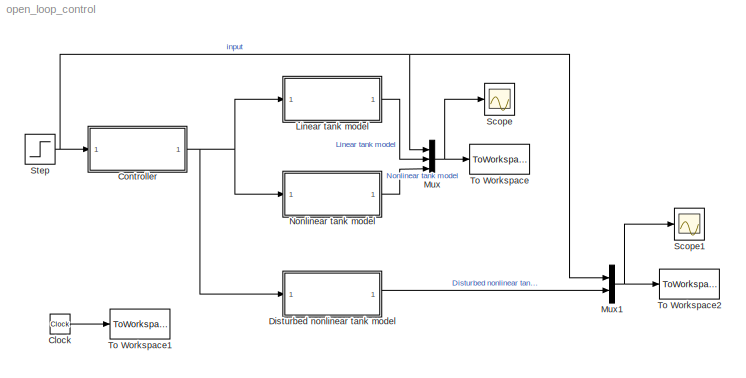
MODEL open_loop_control
KIND model
BLOCK [Clock] Clock
  SID = 1
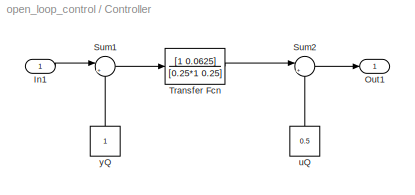
BLOCK [SubSystem] Controller
  Ports = [1, 1]
  RequestExecContextInheritance = off
  SID = 2
BLOCK [Inport] Controller/In1
  IconDisplay = Port number
  SID = 3
BLOCK [Outport] Controller/Out1
  IconDisplay = Port number
  SID = 9
BLOCK [Sum] Controller/Sum1
  IconShape = round
  InputSameDT = off
  Inputs = |+-
  OutDataTypeStr = Inherit: Inherit via internal rule
  Ports = [2, 1]
  SID = 4
  SaturateOnIntegerOverflow = off
BLOCK [Sum] Controller/Sum2
  IconShape = round
  InputSameDT = off
  Inputs = |++
  OutDataTypeStr = Inherit: Inherit via internal rule
  Ports = [2, 1]
  SID = 5
  SaturateOnIntegerOverflow = off
BLOCK [TransferFcn] Controller/Transfer Fcn
  Denominator = [0.25*1 0.25]
  Numerator = [1 0.0625]
  SID = 6
BLOCK [Constant] Controller/uQ
  SID = 7
  Value = 0.5
BLOCK [Constant] Controller/yQ
  SID = 8
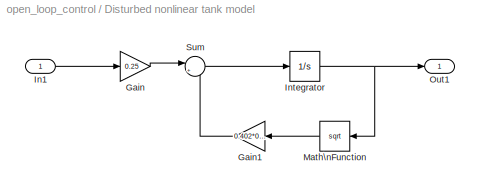
BLOCK [SubSystem] Disturbed nonlinear tank model
  Ports = [1, 1]
  RequestExecContextInheritance = off
  SID = 10
BLOCK [Gain] Disturbed nonlinear tank model/Gain
  Gain = 0.25
  OutDataTypeStr = Inherit: Inherit via internal rule
  ParamDataTypeStr = Inherit: Inherit via internal rule
  SID = 12
  SaturateOnIntegerOverflow = off
BLOCK [Gain] Disturbed nonlinear tank model/Gain1
  Gain = 0.402*0.25
  OutDataTypeStr = Inherit: Inherit via internal rule
  ParamDataTypeStr = Inherit: Inherit via internal rule
  SID = 13
  SaturateOnIntegerOverflow = off
BLOCK [Inport] Disturbed nonlinear tank model/In1
  IconDisplay = Port number
  SID = 11
BLOCK [Integrator] Disturbed nonlinear tank model/Integrator
  InitialCondition = 1
  Ports = [1, 1]
  SID = 14
BLOCK [Math] Disturbed nonlinear tank model/Math\nFunction
  Operator = sqrt
  Ports = [1, 1]
  SID = 15
BLOCK [Outport] Disturbed nonlinear tank model/Out1
  IconDisplay = Port number
  SID = 17
BLOCK [Sum] Disturbed nonlinear tank model/Sum
  IconShape = round
  InputSameDT = off
  Inputs = |+-
  OutDataTypeStr = Inherit: Inherit via internal rule
  Ports = [2, 1]
  SID = 16
  SaturateOnIntegerOverflow = off
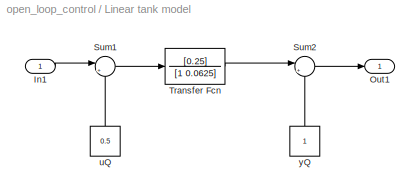
BLOCK [SubSystem] Linear tank model
  Ports = [1, 1]
  RequestExecContextInheritance = off
  SID = 18
BLOCK [Inport] Linear tank model/In1
  IconDisplay = Port number
  SID = 19
BLOCK [Outport] Linear tank model/Out1
  IconDisplay = Port number
  SID = 25
BLOCK [Sum] Linear tank model/Sum1
  IconShape = round
  InputSameDT = off
  Inputs = |+-
  OutDataTypeStr = Inherit: Inherit via internal rule
  Ports = [2, 1]
  SID = 20
  SaturateOnIntegerOverflow = off
BLOCK [Sum] Linear tank model/Sum2
  IconShape = round
  InputSameDT = off
  Inputs = |++
  OutDataTypeStr = Inherit: Inherit via internal rule
  Ports = [2, 1]
  SID = 21
  SaturateOnIntegerOverflow = off
BLOCK [TransferFcn] Linear tank model/Transfer Fcn
  Denominator = [1 0.0625]
  Numerator = [0.25]
  SID = 22
BLOCK [Constant] Linear tank model/uQ
  SID = 23
  Value = 0.5
BLOCK [Constant] Linear tank model/yQ
  SID = 24
BLOCK [Mux] Mux
  DisplayOption = bar
  Inputs = 3
  Ports = [3, 1]
  SID = 26
BLOCK [Mux] Mux1
  DisplayOption = bar
  Inputs = 2
  Ports = [2, 1]
  SID = 27
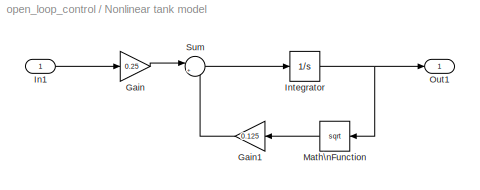
BLOCK [SubSystem] Nonlinear tank model
  Ports = [1, 1]
  RequestExecContextInheritance = off
  SID = 28
BLOCK [Gain] Nonlinear tank model/Gain
  Gain = 0.25
  OutDataTypeStr = Inherit: Inherit via internal rule
  ParamDataTypeStr = Inherit: Inherit via internal rule
  SID = 30
  SaturateOnIntegerOverflow = off
BLOCK [Gain] Nonlinear tank model/Gain1
  Gain = 0.125
  OutDataTypeStr = Inherit: Inherit via internal rule
  ParamDataTypeStr = Inherit: Inherit via internal rule
  SID = 31
  SaturateOnIntegerOverflow = off
BLOCK [Inport] Nonlinear tank model/In1
  IconDisplay = Port number
  SID = 29
BLOCK [Integrator] Nonlinear tank model/Integrator
  InitialCondition = 1
  Ports = [1, 1]
  SID = 32
BLOCK [Math] Nonlinear tank model/Math\nFunction
  Operator = sqrt
  Ports = [1, 1]
  SID = 33
BLOCK [Outport] Nonlinear tank model/Out1
  IconDisplay = Port number
  SID = 35
BLOCK [Sum] Nonlinear tank model/Sum
  IconShape = round
  InputSameDT = off
  Inputs = |+-
  OutDataTypeStr = Inherit: Inherit via internal rule
  Ports = [2, 1]
  SID = 34
  SaturateOnIntegerOverflow = off
BLOCK [Scope] Scope
  Floating = off
  NumInputPorts = 1
  Ports = [1]
  SID = 36
  ScopeSpecificationString = Simulink.scopes.TimeScopeBlockCfg('CurrentConfiguration', extmgr.ConfigurationSet(extmgr.Configuration('Core','General UI',true),extmgr.Configuration('Core','Source UI',true),extmgr.Configuration('Sources','WiredSimulink',true,'DataLoggingSaveFormat','StructureWithTime','DataLoggingLimitDataPoints',true,'DataLoggingDecimation','1','DataLoggingDecimateData',true),extmgr.Configuration('Visuals','Tim...<+1673ch>
BLOCK [Scope] Scope1
  Floating = off
  NumInputPorts = 1
  Ports = [1]
  SID = 37
  ScopeSpecificationString = Simulink.scopes.TimeScopeBlockCfg('CurrentConfiguration', extmgr.ConfigurationSet(extmgr.Configuration('Core','General UI',true),extmgr.Configuration('Core','Source UI',true),extmgr.Configuration('Sources','WiredSimulink',true,'DataLoggingVariableName','ScopeData1','DataLoggingSaveFormat','StructureWithTime','DataLoggingLimitDataPoints',true,'DataLoggingDecimation','1','DataLoggingDecimateData',tr...<+1706ch>
BLOCK [Step] Step
  After = 1.8
  Before = 0.6
  SID = 38
  SampleTime = 0
  Time = 10
BLOCK [ToWorkspace] To Workspace
  MaxDataPoints = inf
  Ports = [1]
  SID = 39
  SampleTime = -1
  VariableName = OLC
BLOCK [ToWorkspace] To Workspace1
  MaxDataPoints = inf
  Ports = [1]
  SID = 40
  SampleTime = -1
  VariableName = OLC_time
BLOCK [ToWorkspace] To Workspace2
  MaxDataPoints = inf
  Ports = [1]
  SID = 41
  SampleTime = -1
  VariableName = OLC_d
LINE Clock:1 -> To Workspace1:1
LINE Controller/In1:1 -> Controller/Sum1:1
LINE Controller/Sum1:1 -> Controller/Transfer Fcn:1
LINE Controller/Sum2:1 -> Controller/Out1:1
LINE Controller/Transfer Fcn:1 -> Controller/Sum2:1
LINE Controller/uQ:1 -> Controller/Sum2:2
LINE Controller/yQ:1 -> Controller/Sum1:2
NET Controller:1 -> Disturbed nonlinear tank model:1, Linear tank model:1, Nonlinear tank model:1
LINE Disturbed nonlinear tank model/Gain1:1 -> Disturbed nonlinear tank model/Sum:2
LINE Disturbed nonlinear tank model/Gain:1 -> Disturbed nonlinear tank model/Sum:1
LINE Disturbed nonlinear tank model/In1:1 -> Disturbed nonlinear tank model/Gain:1
NET Disturbed nonlinear tank model/Integrator:1 -> Disturbed nonlinear tank model/Math\nFunction:1, Disturbed nonlinear tank model/Out1:1
LINE Disturbed nonlinear tank model/Math\nFunction:1 -> Disturbed nonlinear tank model/Gain1:1
LINE Disturbed nonlinear tank model/Sum:1 -> Disturbed nonlinear tank model/Integrator:1
LINE Disturbed nonlinear tank model:1 -> Mux1:2
LINE Linear tank model/In1:1 -> Linear tank model/Sum1:1
LINE Linear tank model/Sum1:1 -> Linear tank model/Transfer Fcn:1
LINE Linear tank model/Sum2:1 -> Linear tank model/Out1:1
LINE Linear tank model/Transfer Fcn:1 -> Linear tank model/Sum2:1
LINE Linear tank model/uQ:1 -> Linear tank model/Sum1:2
LINE Linear tank model/yQ:1 -> Linear tank model/Sum2:2
LINE Linear tank model:1 -> Mux:2
NET Mux1:1 -> Scope1:1, To Workspace2:1
NET Mux:1 -> Scope:1, To Workspace:1
LINE Nonlinear tank model/Gain1:1 -> Nonlinear tank model/Sum:2
LINE Nonlinear tank model/Gain:1 -> Nonlinear tank model/Sum:1
LINE Nonlinear tank model/In1:1 -> Nonlinear tank model/Gain:1
NET Nonlinear tank model/Integrator:1 -> Nonlinear tank model/Math\nFunction:1, Nonlinear tank model/Out1:1
LINE Nonlinear tank model/Math\nFunction:1 -> Nonlinear tank model/Gain1:1
LINE Nonlinear tank model/Sum:1 -> Nonlinear tank model/Integrator:1
LINE Nonlinear tank model:1 -> Mux:3
NET Step:1 -> Controller:1, Mux1:1, Mux:1
note: NET lines group one-source signal fan-out (src -> all destinations, sorted); 1:1 wires keep LINE
